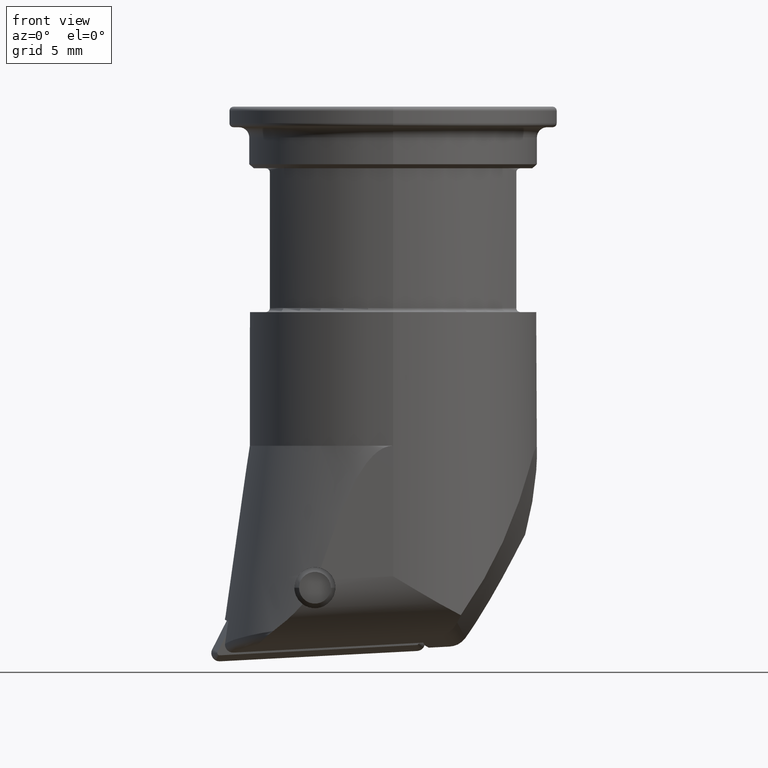
[diagram: clean part render]
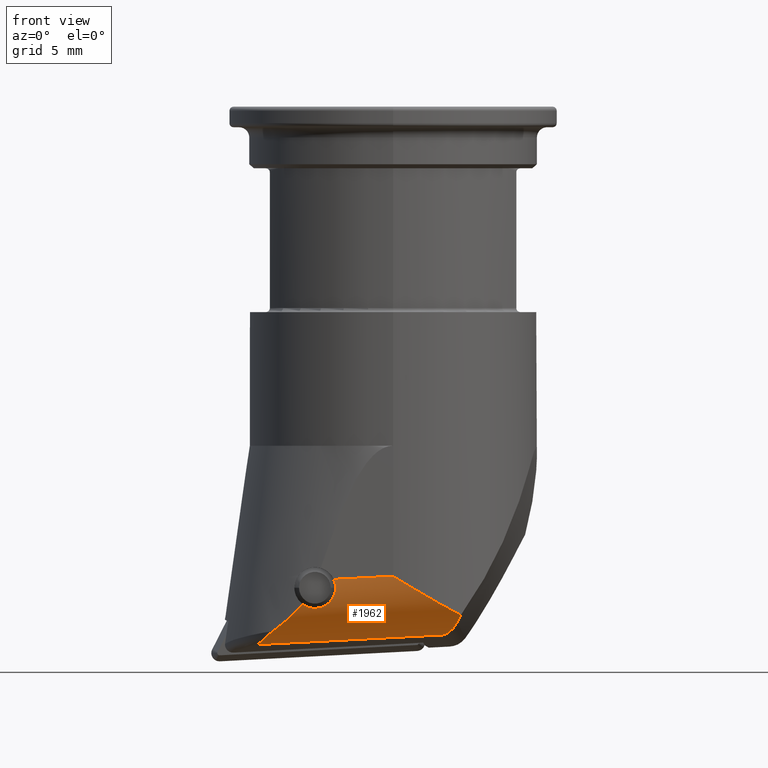
[diagram: same view with one face highlighted and labeled with its STEP entity id]
A machine part, front view. The second image highlights one B-rep face of the part: STEP entity #1962.
In plain terms, the highlighted cylindrical surface (partial cylindrical patch) has radius 3 mm, axis along (-0.9986, 0, -0.0523).
Its self-contained STEP definition (entity closure, byte-faithful):
#718=VERTEX_POINT('NONE',#2031);
#800=VERTEX_POINT('NONE',#2120);
#982=VERTEX_POINT('NONE',#2320);
#1082=EDGE_CURVE('NONE',#1896,#1086,#2433,.T.);
#1086=VERTEX_POINT('NONE',#2438);
#1246=VERTEX_POINT('NONE',#2614);
#1264=EDGE_CURVE('NONE',#1728,#982,#2634,.F.);
#1438=VERTEX_POINT('NONE',#2836);
#1484=EDGE_CURVE('NONE',#982,#800,#2886,.T.);
#1528=EDGE_CURVE('NONE',#800,#718,#2932,.T.);
#1576=EDGE_CURVE('NONE',#1086,#1688,#2989,.T.);
#1616=EDGE_CURVE('NONE',#1688,#1728,#3033,.F.);
#1668=EDGE_CURVE('NONE',#1246,#1896,#3091,.F.);
#1688=VERTEX_POINT('NONE',#3115);
#1694=EDGE_CURVE('NONE',#1438,#1246,#3121,.T.);
#1728=VERTEX_POINT('NONE',#3156);
#1790=EDGE_CURVE('NONE',#718,#1438,#3222,.T.);
#1896=VERTEX_POINT('NONE',#3335);
#1962=ADVANCED_FACE('NONE',(#3412),#3413,.T.);
#2031=CARTESIAN_POINT('',(3.29838022265162,-6.17419532464115,-24.7547677929149));
#2120=CARTESIAN_POINT('',(-2.8421709430404E-014,-7.0,-22.8576985133863));
#2320=CARTESIAN_POINT('',(-2.89089042396598,-6.99999999999999,-23.009203660657));
#2433=B_SPLINE_CURVE_WITH_KNOTS('',3,(#4455,#4456,#4457,#4458,#4459,#4460,#4461),.UNSPECIFIED.,.F.,.F.,(4,3,4),(0.0,0.393454764182978,1.0),.UNSPECIFIED.);
#2438=CARTESIAN_POINT('',(-5.8343778643001,-5.85763374864985,-25.5223714335019));
#2614=CARTESIAN_POINT('',(2.4465805572055,-4.36560803021545,-25.711203464687));
#2634=B_SPLINE_CURVE_WITH_KNOTS('',3,(#5090,#5091,#5092,#5093,#5094,#5095,#5096,#5097,#5098,#5099,#5100,#5101,#5102,#5103,#5104,#5105,#5106,#5107,#5108,#5109,#5110,#5111,#5112,#5113,#5114),.UNSPECIFIED.,.F.,.F.,(4,2,2,2,2,2,2,2,2,3,2,4),(-3.42956248460484,-3.0518380152849,-2.67283524585023,-2.29383247641555,-1.91715856851493,-1.54048466061431,-1.15124490600463,-0.762005151394939,-0.381002575697469,0.0,0.383934441820076,0.767868883640153),.UNSPECIFIED.);
#2836=CARTESIAN_POINT('',(3.12003226631478,-5.78464938122243,-25.1089304992821));
#2886=LINE('',#5560,#5561);
#2932=B_SPLINE_CURVE_WITH_KNOTS('',3,(#5648,#5649,#5650,#5651,#5652,#5653,#5654,#5655,#5656,#5657,#5658,#5659,#5660,#5661,#5662,#5663),.UNSPECIFIED.,.F.,.F.,(4,2,2,2,2,2,2,4),(0.0,0.00541909721256568,0.96786555649554,1.93031201577851,2.89275847506149,3.85520493434446,4.64707572290395,5.43894651146343),.UNSPECIFIED.);
#2989=B_SPLINE_CURVE_WITH_KNOTS('',3,(#5761,#5762,#5763,#5764,#5765,#5766,#5767,#5768,#5769,#5770,#5771,#5772,#5773,#5774,#5775,#5776,#5777,#5778,#5779,#5780),.UNSPECIFIED.,.F.,.F.,(4,2,2,2,2,2,2,2,2,4),(4.8557990326735,5.6196826011183,6.38356616956309,7.14744973800789,7.91133330645269,8.6629408006155,9.41454829477832,10.1661557889411,10.5419595360225,10.9177632831039),.UNSPECIFIED.);
#3033=B_SPLINE_CURVE_WITH_KNOTS('',3,(#5849,#5850,#5851,#5852,#5853,#5854,#5855,#5856,#5857,#5858,#5859,#5860,#5861,#5862,#5863),.UNSPECIFIED.,.F.,.F.,(4,2,2,2,3,2,4),(4.56321413209903,4.95245388670872,5.3416936413184,5.72269621701587,6.10369879271334,6.48763323453342,6.77951955128329),.UNSPECIFIED.);
#3091=LINE('',#5940,#5941);
#3115=CARTESIAN_POINT('',(-4.40311257034504,-6.77988005469449,-24.2179518847528));
#3121=B_SPLINE_CURVE_WITH_KNOTS('',3,(#6408,#6409,#6410,#6411,#6412,#6413,#6414),.UNSPECIFIED.,.F.,.F.,(4,3,4),(0.0,0.660984793681116,1.0),.UNSPECIFIED.);
#3156=CARTESIAN_POINT('',(-2.8051225682443,-6.97832965599733,-23.3651366781963));
#3222=B_SPLINE_CURVE_WITH_KNOTS('',3,(#6613,#6614,#6615,#6616,#6617,#6618,#6619,#6620,#6621,#6622,#6623,#6624,#6625,#6626,#6627,#6628,#6629,#6630),.UNSPECIFIED.,.F.,.F.,(4,2,2,2,2,2,2,2,4),(2.8063358181846,3.74178109091281,4.67620852786339,5.14342224633868,5.61063596481397,6.00454934670575,6.39846272859753,6.7923761104893,7.18628949238108),.UNSPECIFIED.);
#3335=CARTESIAN_POINT('',(-6.59667560154453,-4.36560803021542,-26.1851404374547));
#3412=FACE_OUTER_BOUND('',#6928,.T.);
#3413=CYLINDRICAL_SURFACE('',#6929,3.0);
#4455=CARTESIAN_POINT('',(-6.59667560154453,-4.36560803021542,-26.1851404374547));
#4456=CARTESIAN_POINT('',(-6.54180728712498,-4.59867484030161,-26.1536086325719));
#4457=CARTESIAN_POINT('',(-6.47767905370603,-4.82607124398752,-26.0939264624905));
#4458=CARTESIAN_POINT('',(-6.39353380918961,-5.03705233933362,-26.0116854803237));
#4459=CARTESIAN_POINT('',(-6.26381649013751,-5.36229831391312,-25.8849037497078));
#4460=CARTESIAN_POINT('',(-6.08244877182723,-5.64622942536827,-25.7023100016544));
#4461=CARTESIAN_POINT('',(-5.83437786430054,-5.85763374864326,-25.5223714334936));
#5090=CARTESIAN_POINT('',(-4.23460142081322,-6.94654496083345,-22.5150487510347));
#5091=CARTESIAN_POINT('',(-4.11433622682632,-6.93677765378957,-22.4576298880503));
#5092=CARTESIAN_POINT('',(-3.98182366292928,-6.93092399640448,-22.4254326234508));
#5093=CARTESIAN_POINT('',(-3.7299269394714,-6.93092399640449,-22.4122312755657));
#5094=CARTESIAN_POINT('',(-3.59434443737388,-6.93681877425247,-22.4305477399461));
#5095=CARTESIAN_POINT('',(-3.34245236854624,-6.95645701892317,-22.520212935141));
#5096=CARTESIAN_POINT('',(-3.22609639474206,-6.96970794901986,-22.5915384870846));
#5097=CARTESIAN_POINT('',(-3.03995880044899,-6.99033363868446,-22.7599934375143));
#5098=CARTESIAN_POINT('',(-2.95756194214672,-6.99905230623845,-22.8682370209704));
#5099=CARTESIAN_POINT('',(-2.84340131752958,-7.00079680107336,-23.1085650143719));
#5100=CARTESIAN_POINT('',(-2.81164629793614,-6.99339384863401,-23.2406565002325));
#5101=CARTESIAN_POINT('',(-2.7983812068409,-6.96276292168867,-23.4937695165961));
#5102=CARTESIAN_POINT('',(-2.81755612117404,-6.93710070537363,-23.6304796633098));
#5103=CARTESIAN_POINT('',(-2.9084214723457,-6.87352454608737,-23.8825936219027));
#5104=CARTESIAN_POINT('',(-2.98001538125511,-6.83598278010233,-23.9981259135482));
#5105=CARTESIAN_POINT('',(-3.14696014473266,-6.76935266469015,-24.181453825712));
#5106=CARTESIAN_POINT('',(-3.25336248729211,-6.73552463714774,-24.2627952262477));
#5107=CARTESIAN_POINT('',(-3.49209162727332,-6.68753089165551,-24.3768299698929));
#5108=CARTESIAN_POINT('',(-3.62458933845292,-6.67405676957067,-24.4094554578171));
#5109=CARTESIAN_POINT('',(-3.75141614675594,-6.67405676957067,-24.4161021691938));
#5110=CARTESIAN_POINT('',(-3.87921890442628,-6.67405676957067,-24.4228000279096));
#5111=CARTESIAN_POINT('',(-4.01535994473608,-6.68774043326269,-24.4038631282039));
#5112=CARTESIAN_POINT('',(-4.26618870865792,-6.73634977508893,-24.3140755243421));
#5113=CARTESIAN_POINT('',(-4.38104357941496,-6.77056713593233,-24.2433097839419));
#5114=CARTESIAN_POINT('',(-4.47288270935774,-6.80382311190922,-24.1606174599167));
#5560=CARTESIAN_POINT('',(-15.1729668794541,-6.99999999999997,-23.6528800126735));
#5561=VECTOR('',#8051,1.0);
#5648=CARTESIAN_POINT('',(-2.8421709430404E-014,-7.0,-22.8576985133863));
#5649=CARTESIAN_POINT('',(0.00154679600917928,-7.0,-22.8586314545868));
#5650=CARTESIAN_POINT('',(0.00340295114170208,-6.99999934375012,-22.8597509839653));
#5651=CARTESIAN_POINT('',(0.279664910616259,-6.99980399701564,-23.0263767655281));
#5652=CARTESIAN_POINT('',(0.56690873232125,-6.9832059147254,-23.199663175211));
#5653=CARTESIAN_POINT('',(1.15085181746365,-6.9110122602423,-23.5489408117327));
#5654=CARTESIAN_POINT('',(1.44756254938969,-6.85541505885934,-23.7249125277588));
#5655=CARTESIAN_POINT('',(2.0356076715114,-6.70436094269144,-24.0668921010043));
#5656=CARTESIAN_POINT('',(2.32709630259825,-6.60885331865822,-24.2329596275814));
#5657=CARTESIAN_POINT('',(2.89099106837584,-6.38235771761091,-24.5433754074356));
#5658=CARTESIAN_POINT('',(3.16340780600315,-6.25134000328164,-24.6876826995858));
#5659=CARTESIAN_POINT('',(3.63089798356846,-5.98958000986077,-24.9219761441746));
#5660=CARTESIAN_POINT('',(3.847877155076,-5.85350061035221,-25.0255269345696));
#5661=CARTESIAN_POINT('',(4.27763671280277,-5.54720219179599,-25.2140131492822));
#5662=CARTESIAN_POINT('',(4.49041324046641,-5.37695947077022,-25.2989188526345));
#5663=CARTESIAN_POINT('',(4.69424987666123,-5.19268890801924,-25.3681856735231));
#5761=CARTESIAN_POINT('',(-7.22913954766379,-4.21341961157851,-26.2330673192225));
#5762=CARTESIAN_POINT('',(-7.09871043487057,-4.4309583327471,-26.2106955411312));
#5763=CARTESIAN_POINT('',(-6.95279745016138,-4.64491550321901,-26.1636875110069));
#5764=CARTESIAN_POINT('',(-6.63787370824664,-5.05307438126847,-26.0265863196478));
#5765=CARTESIAN_POINT('',(-6.46887220526262,-5.24730090057114,-25.936545773705));
#5766=CARTESIAN_POINT('',(-6.11894949677859,-5.60720334670282,-25.7232745451465));
#5767=CARTESIAN_POINT('',(-5.93791195557018,-5.77303786562112,-25.5999913306348));
#5768=CARTESIAN_POINT('',(-5.57708425419926,-6.07127568656051,-25.3318561553611));
#5769=CARTESIAN_POINT('',(-5.39731632027356,-6.20369869686937,-25.1869962066559));
#5770=CARTESIAN_POINT('',(-5.05677609028812,-6.43143566173787,-24.8914313613194));
#5771=CARTESIAN_POINT('',(-4.88167005921155,-6.53654855479983,-24.7287828193582));
#5772=CARTESIAN_POINT('',(-4.53924260110935,-6.7194567408645,-24.3781716910551));
#5773=CARTESIAN_POINT('',(-4.3718560824272,-6.79736243037763,-24.1903302913219));
#5774=CARTESIAN_POINT('',(-4.06895456715051,-6.91846232817851,-23.7945848476909));
#5775=CARTESIAN_POINT('',(-3.93376037175494,-6.96173671913017,-23.5876943197776));
#5776=CARTESIAN_POINT('',(-3.77769795680843,-6.99490588890723,-23.2607109825657));
#5777=CARTESIAN_POINT('',(-3.7335915202488,-7.00062895339017,-23.1489609439442));
#5778=CARTESIAN_POINT('',(-3.66675148846171,-6.99926235676407,-22.9181074363625));
#5779=CARTESIAN_POINT('',(-3.64398907976292,-6.99221011921763,-22.7990120908422));
#5780=CARTESIAN_POINT('',(-3.63593190135247,-6.9767497313897,-22.6749632738928));
#5849=CARTESIAN_POINT('',(-2.8051225682443,-6.97832965599733,-23.3651366781963));
#5850=CARTESIAN_POINT('',(-2.79838120684089,-6.96276292168867,-23.4937695165962));
#5851=CARTESIAN_POINT('',(-2.81755612117404,-6.93710070537363,-23.6304796633098));
#5852=CARTESIAN_POINT('',(-2.9084214723457,-6.87352454608737,-23.8825936219027));
#5853=CARTESIAN_POINT('',(-2.98001538125511,-6.83598278010233,-23.9981259135482));
#5854=CARTESIAN_POINT('',(-3.14696014473266,-6.76935266469015,-24.181453825712));
#5855=CARTESIAN_POINT('',(-3.25336248729211,-6.73552463714774,-24.2627952262477));
#5856=CARTESIAN_POINT('',(-3.49209162727332,-6.68753089165551,-24.3768299698929));
#5857=CARTESIAN_POINT('',(-3.62458933845292,-6.67405676957067,-24.4094554578171));
#5858=CARTESIAN_POINT('',(-3.75141614675594,-6.67405676957067,-24.4161021691938));
#5859=CARTESIAN_POINT('',(-3.87921890442628,-6.67405676957067,-24.4228000279096));
#5860=CARTESIAN_POINT('',(-4.01535994473608,-6.68774043326269,-24.4038631282039));
#5861=CARTESIAN_POINT('',(-4.23612066198408,-6.73052274019882,-24.3248387949552));
#5862=CARTESIAN_POINT('',(-4.32556582523804,-6.75470617278439,-24.2760151679301));
#5863=CARTESIAN_POINT('',(-4.40311257034504,-6.77988005469449,-24.2179518847528));
#5940=CARTESIAN_POINT('',(-15.0171293235699,-4.36560803021539,-26.6264377175816));
#5941=VECTOR('',#8318,1.0);
#6408=CARTESIAN_POINT('',(3.12003226631479,-5.78464938122266,-25.1089304992824));
#6409=CARTESIAN_POINT('',(3.01454362590646,-5.49873833398099,-25.3263455691586));
#6410=CARTESIAN_POINT('',(2.8643880008028,-5.18755577781913,-25.4866212939365));
#6411=CARTESIAN_POINT('',(2.70302763125936,-4.86689322961942,-25.5919997632884));
#6412=CARTESIAN_POINT('',(2.62026684841621,-4.70242729791282,-25.6460477593549));
#6413=CARTESIAN_POINT('',(2.53372483821254,-4.53480641957619,-25.6858329660796));
#6414=CARTESIAN_POINT('',(2.4465805572055,-4.36560803021545,-25.711203464687));
#6613=CARTESIAN_POINT('',(4.27042222938988,-6.99098078565518,-22.8666661885505));
#6614=CARTESIAN_POINT('',(4.12811028171785,-6.96924386002569,-23.154199232465));
#6615=CARTESIAN_POINT('',(3.98510614466809,-6.908157027148,-23.4356547463554));
#6616=CARTESIAN_POINT('',(3.7126200815175,-6.71832115712768,-23.9631063914253));
#6617=CARTESIAN_POINT('',(3.56805253885858,-6.57743540249667,-24.2378337981544));
#6618=CARTESIAN_POINT('',(3.37209063130719,-6.30280763045763,-24.6123937921175));
#6619=CARTESIAN_POINT('',(3.31019645739766,-6.20099585625886,-24.7312690790649));
#6620=CARTESIAN_POINT('',(3.19813209275036,-5.98203502270816,-24.950368436846));
#6621=CARTESIAN_POINT('',(3.14798873796953,-5.86486555758609,-25.0505858394481));
#6622=CARTESIAN_POINT('',(3.06950129080143,-5.64228374236669,-25.2139577357538));
#6623=CARTESIAN_POINT('',(3.03631874126379,-5.53039714058484,-25.28595329563));
#6624=CARTESIAN_POINT('',(2.98079900630977,-5.29149081569726,-25.4163592776211));
#6625=CARTESIAN_POINT('',(2.95848727040399,-5.16445921018126,-25.4747587641947));
#6626=CARTESIAN_POINT('',(2.92812187508774,-4.90226949261324,-25.572681778153));
#6627=CARTESIAN_POINT('',(2.92006743840901,-4.76691927058065,-25.6122640304178));
#6628=CARTESIAN_POINT('',(2.91884412069458,-4.4963901354412,-25.6706746118324));
#6629=CARTESIAN_POINT('',(2.92567772220274,-4.36121131598305,-25.6895034266826));
#6630=CARTESIAN_POINT('',(2.93863148345622,-4.23088557889081,-25.6988983030652));
#6928=EDGE_LOOP('',(#8644,#8645,#8646,#8647,#8648,#8649,#8650,#8651,#8652));
#6929=AXIS2_PLACEMENT_3D('',#8653,#8654,#8655);
#8051=DIRECTION('',(0.998629534754574,-3.50457247649589E-015,0.0523359562429371));
#8318=DIRECTION('',(0.998629534754574,-3.50457247649589E-015,0.0523359562429371));
#8644=ORIENTED_EDGE('',*,*,#1528,.F.);
#8645=ORIENTED_EDGE('',*,*,#1484,.F.);
#8646=ORIENTED_EDGE('',*,*,#1264,.F.);
#8647=ORIENTED_EDGE('',*,*,#1616,.F.);
#8648=ORIENTED_EDGE('',*,*,#1576,.F.);
#8649=ORIENTED_EDGE('',*,*,#1082,.F.);
#8650=ORIENTED_EDGE('',*,*,#1668,.F.);
#8651=ORIENTED_EDGE('',*,*,#1694,.F.);
#8652=ORIENTED_EDGE('',*,*,#1790,.F.);
#8653=CARTESIAN_POINT('',(-15.1729668794541,-3.99999999999995,-23.6528800126735));
#8654=DIRECTION('',(-0.998629534754574,3.50457247649589E-015,-0.0523359562429371));
#8655=DIRECTION('',(-0.0523359562429371,0.0,0.998629534754574));